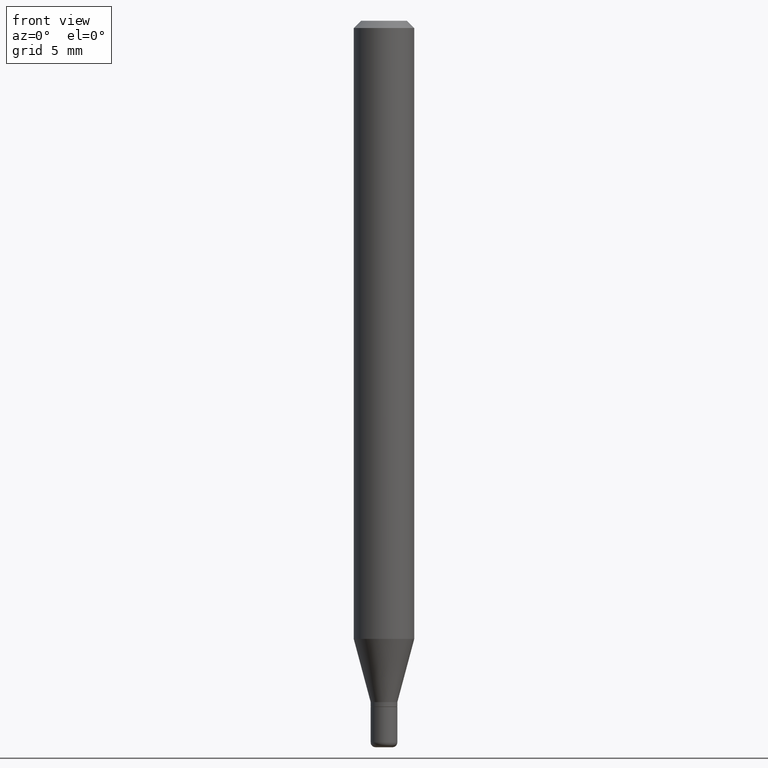
[diagram: clean part render]
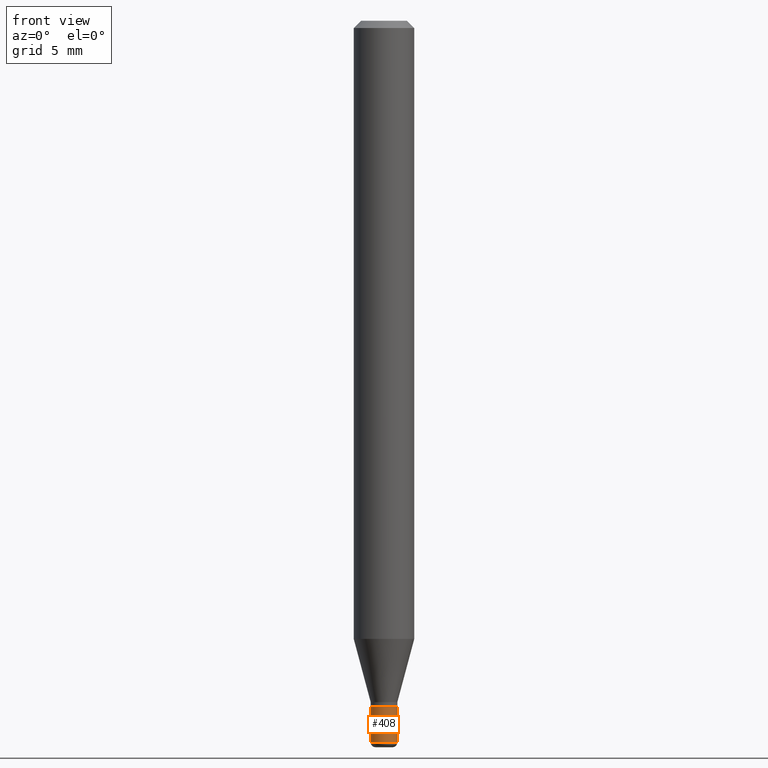
[diagram: same view with one face highlighted and labeled with its STEP entity id]
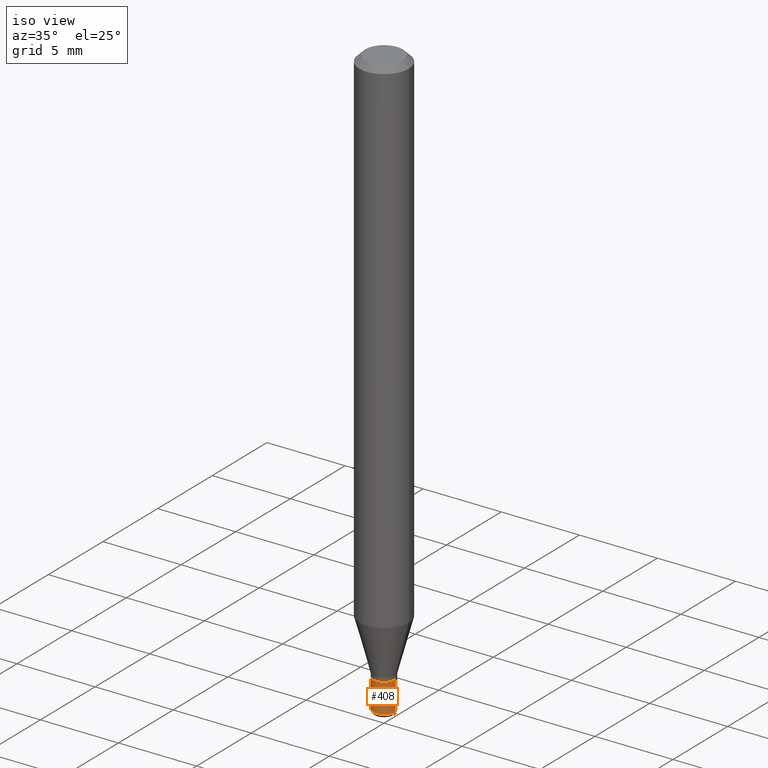
[diagram: same view with one face highlighted and labeled with its STEP entity id]
A machine part, front view. The second image highlights one B-rep face of the part: STEP entity #408.
A second angle (iso view) of the same face is appended — the face is thin or edge-on in the first view.
In plain terms, the highlighted cylindrical surface (edge-blend (fillet) strip) has radius 0.6985 mm, axis along (-0, 0, 1).
Its self-contained STEP definition (entity closure, byte-faithful):
#11 = DIRECTION ( 'NONE',  ( 1.000000000000000000, -6.982962677686279332E-15, 0.000000000000000000 ) ) ;
#22 = VERTEX_POINT ( 'NONE', #327 ) ;
#35 = ORIENTED_EDGE ( 'NONE', *, *, #97, .F. ) ;
#53 = VECTOR ( 'NONE', #402, 39.37007874015748143 ) ;
#74 = AXIS2_PLACEMENT_3D ( 'NONE', #90, #211, #369 ) ;
#76 = VERTEX_POINT ( 'NONE', #387 ) ;
#77 = CARTESIAN_POINT ( 'NONE',  ( 0.02749999999999997238, -1.920314736363721225E-16, 1.340948613343880837E-30 ) ) ;
#84 = EDGE_CURVE ( 'NONE', #22, #292, #391, .T. ) ;
#90 = CARTESIAN_POINT ( 'NONE',  ( 0.000000000000000000, 0.000000000000000000, 0.000000000000000000 ) ) ;
#97 = EDGE_CURVE ( 'NONE', #22, #349, #274, .T. ) ;
#125 = AXIS2_PLACEMENT_3D ( 'NONE', #218, #142, #11 ) ;
#142 = DIRECTION ( 'NONE',  ( -2.445468806185136597E-29, 3.491481338843145583E-15, 1.000000000000000000 ) ) ;
#178 = EDGE_CURVE ( 'NONE', #292, #76, #440, .T. ) ;
#196 = DIRECTION ( 'NONE',  ( 1.000000000000000000, -6.982962677686258822E-15, 0.000000000000000000 ) ) ;
#211 = DIRECTION ( 'NONE',  ( -2.445468806185136597E-29, 3.491481338843145583E-15, 1.000000000000000000 ) ) ;
#218 = CARTESIAN_POINT ( 'NONE',  ( 3.465229298364339647E-29, -4.947429057140738329E-15, -1.417000000000000259 ) ) ;
#233 = DIRECTION ( 'NONE',  ( -2.445468806185136597E-29, 3.491481338843145583E-15, 1.000000000000000000 ) ) ;
#246 = VECTOR ( 'NONE', #501, 39.37007874015748143 ) ;
#254 = CYLINDRICAL_SURFACE ( 'NONE', #74, 0.02749999999999997238 ) ;
#274 = LINE ( 'NONE', #432, #246 ) ;
#292 = VERTEX_POINT ( 'NONE', #451 ) ;
#327 = CARTESIAN_POINT ( 'NONE',  ( -0.02749999999999994463, -4.879468873674486281E-15, -1.490000000000000213 ) ) ;
#333 = CARTESIAN_POINT ( 'NONE',  ( -0.02750000000000000014, -4.879468873674486281E-15, -1.417000000000000259 ) ) ;
#347 = ORIENTED_EDGE ( 'NONE', *, *, #428, .F. ) ;
#349 = VERTEX_POINT ( 'NONE', #333 ) ;
#369 = DIRECTION ( 'NONE',  ( 1.000000000000000000, -6.982962677686265922E-15, 4.876176775795935232E-29 ) ) ;
#381 = ORIENTED_EDGE ( 'NONE', *, *, #84, .T. ) ;
#387 = CARTESIAN_POINT ( 'NONE',  ( 0.02750000000000000014, -5.139460530777110821E-15, -1.417000000000000259 ) ) ;
#391 = CIRCLE ( 'NONE', #458, 0.02749999999999994463 ) ;
#393 = ORIENTED_EDGE ( 'NONE', *, *, #178, .T. ) ;
#402 = DIRECTION ( 'NONE',  ( -2.445468806185136877E-29, 3.491481338843145188E-15, 1.000000000000000000 ) ) ;
#408 = ADVANCED_FACE ( 'NONE', ( #517 ), #254, .T. ) ;
#428 = EDGE_CURVE ( 'NONE', #349, #76, #512, .T. ) ;
#429 = CARTESIAN_POINT ( 'NONE',  ( 3.643748521215853910E-29, -5.202307194876288105E-15, -1.490000000000000213 ) ) ;
#432 = CARTESIAN_POINT ( 'NONE',  ( -0.02749999999999997238, 1.953992523340273549E-16, -1.352707149820097605E-30 ) ) ;
#435 = EDGE_LOOP ( 'NONE', ( #35, #381, #393, #347 ) ) ;
#440 = LINE ( 'NONE', #77, #53 ) ;
#451 = CARTESIAN_POINT ( 'NONE',  ( 0.02749999999999994463, -5.394338668512659809E-15, -1.490000000000000213 ) ) ;
#458 = AXIS2_PLACEMENT_3D ( 'NONE', #429, #233, #196 ) ;
#501 = DIRECTION ( 'NONE',  ( -2.445468806185136877E-29, 3.491481338843145188E-15, 1.000000000000000000 ) ) ;
#512 = CIRCLE ( 'NONE', #125, 0.02750000000000000014 ) ;
#517 = FACE_OUTER_BOUND ( 'NONE', #435, .T. ) ;